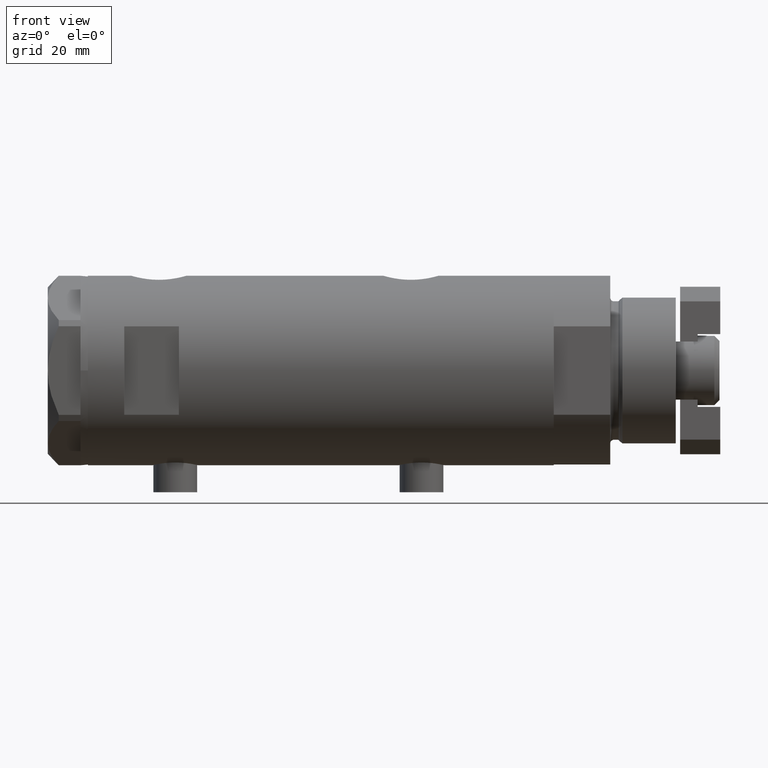
[diagram: clean part render]
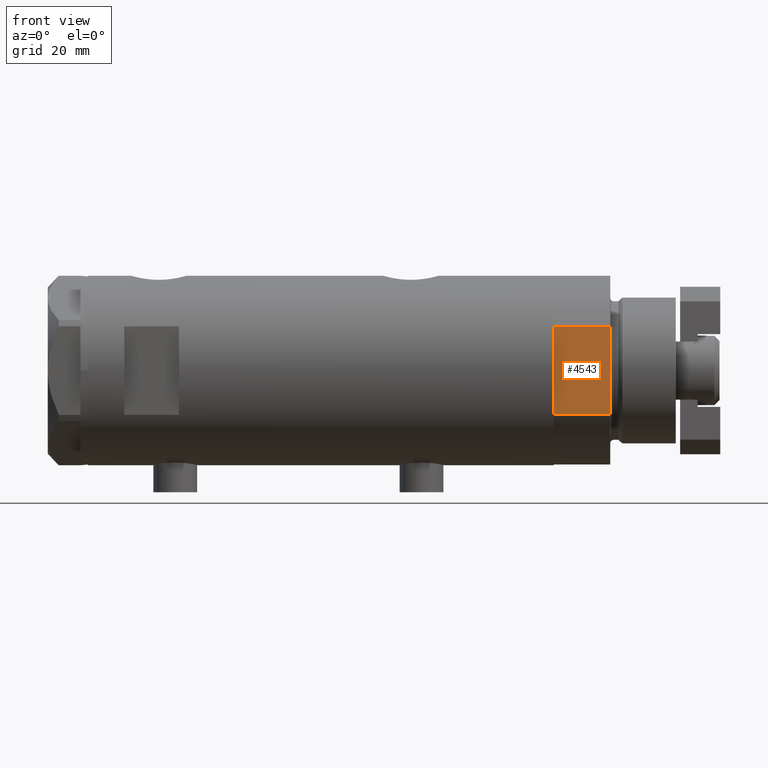
[diagram: same view with one face highlighted and labeled with its STEP entity id]
A machine part, front view. The second image highlights one B-rep face of the part: STEP entity #4543.
In plain terms, the highlighted planar face has unit normal (-0, 1, 0).
Its self-contained STEP definition (entity closure, byte-faithful):
#3 = CARTESIAN_POINT ( 'NONE',  ( 12.12435565298215323, -22.99999999999999645, 15.50000000000000000 ) ) ;
#155 = AXIS2_PLACEMENT_3D ( 'NONE', #269, #1981, #5396 ) ;
#269 = CARTESIAN_POINT ( 'NONE',  ( -12.12435565298215145, -22.99999999999999645, 0.000000000000000000 ) ) ;
#689 = EDGE_CURVE ( 'NONE', #2976, #4670, #1745, .T. ) ;
#785 = VECTOR ( 'NONE', #3282, 1000.000000000000000 ) ;
#1092 = VERTEX_POINT ( 'NONE', #1356 ) ;
#1159 = LINE ( 'NONE', #2417, #785 ) ;
#1216 = EDGE_CURVE ( 'NONE', #1092, #4670, #1866, .T. ) ;
#1326 = VERTEX_POINT ( 'NONE', #4828 ) ;
#1356 = CARTESIAN_POINT ( 'NONE',  ( -12.12435565298215501, -22.99999999999999645, 0.000000000000000000 ) ) ;
#1529 = FACE_OUTER_BOUND ( 'NONE', #2186, .T. ) ;
#1745 = LINE ( 'NONE', #5550, #2667 ) ;
#1866 = LINE ( 'NONE', #5310, #2493 ) ;
#1981 = DIRECTION ( 'NONE',  ( -0.000000000000000000, 1.000000000000000000, 0.000000000000000000 ) ) ;
#2128 = ORIENTED_EDGE ( 'NONE', *, *, #1216, .F. ) ;
#2186 = EDGE_LOOP ( 'NONE', ( #3296, #2128, #2816, #4896 ) ) ;
#2417 = CARTESIAN_POINT ( 'NONE',  ( 12.12435565298215323, -22.99999999999999645, 0.000000000000000000 ) ) ;
#2493 = VECTOR ( 'NONE', #4011, 1000.000000000000000 ) ;
#2621 = DIRECTION ( 'NONE',  ( -1.000000000000000000, -0.000000000000000000, -0.000000000000000000 ) ) ;
#2667 = VECTOR ( 'NONE', #2621, 1000.000000000000000 ) ;
#2816 = ORIENTED_EDGE ( 'NONE', *, *, #5186, .F. ) ;
#2837 = CARTESIAN_POINT ( 'NONE',  ( -12.12435565298215323, -22.99999999999999645, 15.50000000000000000 ) ) ;
#2976 = VERTEX_POINT ( 'NONE', #3 ) ;
#3282 = DIRECTION ( 'NONE',  ( -0.000000000000000000, -0.000000000000000000, 1.000000000000000000 ) ) ;
#3296 = ORIENTED_EDGE ( 'NONE', *, *, #689, .T. ) ;
#3406 = CARTESIAN_POINT ( 'NONE',  ( -12.12435565298215145, -22.99999999999999645, 0.000000000000000000 ) ) ;
#3428 = VECTOR ( 'NONE', #4287, 1000.000000000000000 ) ;
#4011 = DIRECTION ( 'NONE',  ( -0.000000000000000000, -0.000000000000000000, 1.000000000000000000 ) ) ;
#4203 = EDGE_CURVE ( 'NONE', #1326, #2976, #1159, .T. ) ;
#4287 = DIRECTION ( 'NONE',  ( -1.000000000000000000, -0.000000000000000000, -0.000000000000000000 ) ) ;
#4527 = PLANE ( 'NONE',  #155 ) ;
#4543 = ADVANCED_FACE ( 'NONE', ( #1529 ), #4527, .F. ) ;
#4670 = VERTEX_POINT ( 'NONE', #2837 ) ;
#4828 = CARTESIAN_POINT ( 'NONE',  ( 12.12435565298215323, -22.99999999999999645, 0.000000000000000000 ) ) ;
#4896 = ORIENTED_EDGE ( 'NONE', *, *, #4203, .T. ) ;
#5186 = EDGE_CURVE ( 'NONE', #1326, #1092, #5549, .T. ) ;
#5310 = CARTESIAN_POINT ( 'NONE',  ( -12.12435565298215145, -22.99999999999999645, 0.000000000000000000 ) ) ;
#5396 = DIRECTION ( 'NONE',  ( 0.000000000000000000, -0.000000000000000000, 1.000000000000000000 ) ) ;
#5549 = LINE ( 'NONE', #3406, #3428 ) ;
#5550 = CARTESIAN_POINT ( 'NONE',  ( -12.12435565298215145, -22.99999999999999645, 15.50000000000000000 ) ) ;